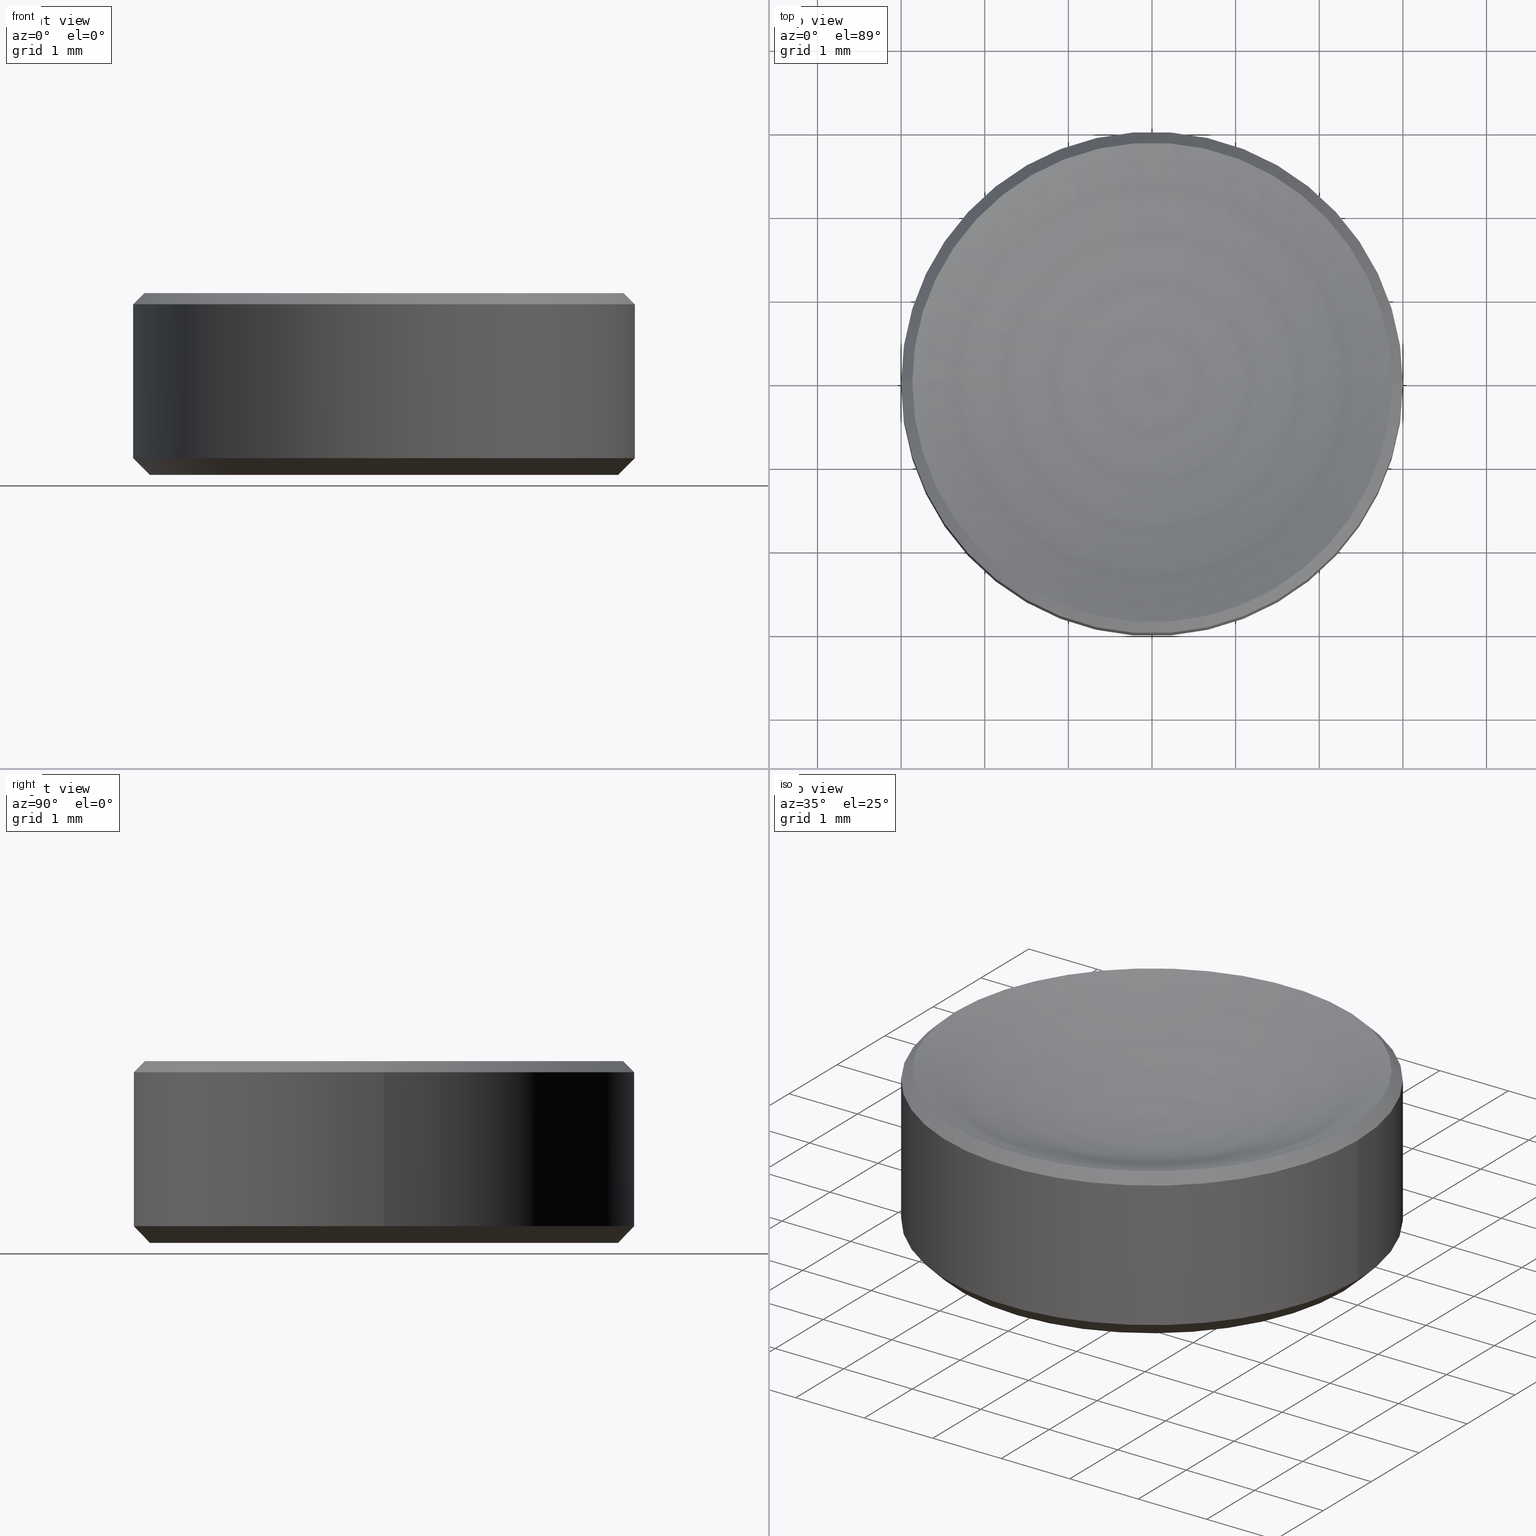
[diagram: canonical four-view strip — front | top / right | iso, engineering-drawing reading convention]
A machine part, canonical four-view strip (front | top / right | iso — engineering-drawing reading convention). The complete STEP part file that produces these views, byte-faithful:
ISO-10303-21;
HEADER;
FILE_DESCRIPTION (( 'STEP AP214' ),
    '1' );
FILE_NAME ('GL13-006A-012.STEP',
    '2022-10-25T12:37:21',
    ( '' ),
    ( '' ),
    'SwSTEP 2.0',
    'SolidWorks 2022',
    '' );
FILE_SCHEMA (( 'AUTOMOTIVE_DESIGN' ));
ENDSEC;

DATA;
#1 = COLOUR_RGB ( '',1.000000000000000000, 1.000000000000000000, 1.000000000000000000 ) ;
#2 = PRESENTATION_STYLE_ASSIGNMENT (( #146 ) ) ;
#3 = APPLICATION_PROTOCOL_DEFINITION ( 'draft international standard', 'automotive_design', 1998, #80 ) ;
#4 = ORIENTED_EDGE ( 'NONE', *, *, #187, .T. ) ;
#5 = ADVANCED_FACE ( 'NONE', ( #197 ), #238, .T. ) ;
#6 = PRODUCT_RELATED_PRODUCT_CATEGORY ( 'part', '', ( #34 ) ) ;
#7 = CONICAL_SURFACE ( 'NONE', #193, 3.000000000000000000, 0.7853981633974482790 ) ;
#8 = VECTOR ( 'NONE', #132, 1000.000000000000000 ) ;
#9 = ORIENTED_EDGE ( 'NONE', *, *, #18, .F. ) ;
#10 = CARTESIAN_POINT ( 'NONE',  ( 0.000000000000000000, 0.000000000000000000, 7.959999625418450186 ) ) ;
#11 = DIRECTION ( 'NONE',  ( -1.000000000000000000, 0.000000000000000000, 0.000000000000000000 ) ) ;
#12 = DIRECTION ( 'NONE',  ( 0.000000000000000000, 0.000000000000000000, 1.000000000000000000 ) ) ;
#13 = ORIENTED_EDGE ( 'NONE', *, *, #107, .F. ) ;
#14 = DIRECTION ( 'NONE',  ( -0.7071067811865474617, 8.659560562354932858E-17, 0.7071067811865474617 ) ) ;
#15 = ORIENTED_EDGE ( 'NONE', *, *, #122, .T. ) ;
#16 =( NAMED_UNIT ( * ) SI_UNIT ( $, .STERADIAN. ) SOLID_ANGLE_UNIT ( ) );
#17 = DIRECTION ( 'NONE',  ( -1.000000000000000000, 0.000000000000000000, 0.000000000000000000 ) ) ;
#18 = EDGE_CURVE ( 'NONE', #139, #178, #134, .T. ) ;
#19 = AXIS2_PLACEMENT_3D ( 'NONE', #217, #39, #120 ) ;
#20 = VECTOR ( 'NONE', #14, 1000.000000000000114 ) ;
#21 = AXIS2_PLACEMENT_3D ( 'NONE', #46, #164, #128 ) ;
#22 = LINE ( 'NONE', #142, #118 ) ;
#23 = ORIENTED_EDGE ( 'NONE', *, *, #148, .F. ) ;
#24 = DIRECTION ( 'NONE',  ( 1.000000000000000000, 0.000000000000000000, 0.000000000000000000 ) ) ;
#25 = CIRCLE ( 'NONE', #219, 6.459999999999999076 ) ;
#26 =( NAMED_UNIT ( * ) PLANE_ANGLE_UNIT ( ) SI_UNIT ( $, .RADIAN. ) );
#27 = ADVANCED_FACE ( 'NONE', ( #112 ), #110, .F. ) ;
#28 = FILL_AREA_STYLE_COLOUR ( '', #1 ) ;
#29 = CIRCLE ( 'NONE', #225, 2.867573379116970411 ) ;
#30 = CARTESIAN_POINT ( 'NONE',  ( 0.000000000000000000, 0.000000000000000000, 0.000000000000000000 ) ) ;
#31 = ADVANCED_BREP_SHAPE_REPRESENTATION ( 'GL13-006A-012', ( #87, #191 ), #123 ) ;
#32 = CIRCLE ( 'NONE', #21, 3.000000000000000000 ) ;
#33 = ORIENTED_EDGE ( 'NONE', *, *, #224, .T. ) ;
#34 = PRODUCT ( 'GL13-006A-012', 'GL13-006A-012', '', ( #156 ) ) ;
#35 = ORIENTED_EDGE ( 'NONE', *, *, #108, .F. ) ;
#36 = DIRECTION ( 'NONE',  ( -0.000000000000000000, -0.000000000000000000, 1.000000000000000000 ) ) ;
#37 = ORIENTED_EDGE ( 'NONE', *, *, #223, .F. ) ;
#38 = DIRECTION ( 'NONE',  ( 1.000000000000000000, 0.000000000000000000, 0.000000000000000000 ) ) ;
#39 = DIRECTION ( 'NONE',  ( -0.000000000000000000, -0.000000000000000000, 1.000000000000000000 ) ) ;
#40 = CARTESIAN_POINT ( 'NONE',  ( 0.000000000000000000, 0.000000000000000000, 1.500000000000000000 ) ) ;
#41 = CARTESIAN_POINT ( 'NONE',  ( 0.000000000000000000, 0.000000000000000000, 2.039999999999998259 ) ) ;
#42 = EDGE_LOOP ( 'NONE', ( #33, #199, #175, #189 ) ) ;
#43 = CARTESIAN_POINT ( 'NONE',  ( 3.000000000000000000, 0.000000000000000000, 0.2000000000000020373 ) ) ;
#44 = CIRCLE ( 'NONE', #177, 3.000000000000000000 ) ;
#45 = CIRCLE ( 'NONE', #161, 6.459999999999999076 ) ;
#46 = CARTESIAN_POINT ( 'NONE',  ( 0.000000000000000000, 0.000000000000000000, 0.2000000000000020373 ) ) ;
#47 = ORIENTED_EDGE ( 'NONE', *, *, #126, .F. ) ;
#48 = CARTESIAN_POINT ( 'NONE',  ( -2.799999999999998046, 3.551475717527323339E-16, 1.836970198721029934E-16 ) ) ;
#49 =( NAMED_UNIT ( * ) SI_UNIT ( $, .STERADIAN. ) SOLID_ANGLE_UNIT ( ) );
#50 = AXIS2_PLACEMENT_3D ( 'NONE', #104, #234, #213 ) ;
#51 = PLANE ( 'NONE',  #88 ) ;
#52 = UNCERTAINTY_MEASURE_WITH_UNIT (LENGTH_MEASURE( 1.000000000000000082E-05 ), #124, 'distance_accuracy_value', 'NONE');
#53 = FACE_OUTER_BOUND ( 'NONE', #109, .T. ) ;
#54 = VECTOR ( 'NONE', #116, 1000.000000000000114 ) ;
#55 = FACE_OUTER_BOUND ( 'NONE', #113, .T. ) ;
#56 = DIRECTION ( 'NONE',  ( 1.000000000000000000, 0.000000000000000000, 0.000000000000000000 ) ) ;
#57 = CARTESIAN_POINT ( 'NONE',  ( 0.000000000000000000, 0.000000000000000000, 1.836970198721029934E-16 ) ) ;
#58 = ORIENTED_EDGE ( 'NONE', *, *, #90, .F. ) ;
#59 = DIRECTION ( 'NONE',  ( -0.000000000000000000, -0.000000000000000000, 1.000000000000000000 ) ) ;
#60 = ADVANCED_FACE ( 'NONE', ( #92 ), #51, .F. ) ;
#61 = ADVANCED_FACE ( 'NONE', ( #53 ), #256, .F. ) ;
#62 = DIRECTION ( 'NONE',  ( 0.000000000000000000, 0.000000000000000000, -1.000000000000000000 ) ) ;
#63 = DIRECTION ( 'NONE',  ( -1.000000000000000000, 1.224646799147352961E-16, 0.000000000000000000 ) ) ;
#64 = CARTESIAN_POINT ( 'NONE',  ( 2.867573379116970411, 0.000000000000000000, 2.172426620883027404 ) ) ;
#65 = VERTEX_POINT ( 'NONE', #196 ) ;
#66 = DIRECTION ( 'NONE',  ( -0.000000000000000000, -0.000000000000000000, 1.000000000000000000 ) ) ;
#67 = DIRECTION ( 'NONE',  ( 0.000000000000000000, 0.000000000000000000, -1.000000000000000000 ) ) ;
#68 = ADVANCED_FACE ( 'NONE', ( #55 ), #76, .T. ) ;
#69 = DIRECTION ( 'NONE',  ( 0.000000000000000000, -1.000000000000000000, 0.000000000000000000 ) ) ;
#70 = AXIS2_PLACEMENT_3D ( 'NONE', #204, #62, #81 ) ;
#71 = PRESENTATION_LAYER_ASSIGNMENT (  '', '', ( #183 ) ) ;
#72 = UNCERTAINTY_MEASURE_WITH_UNIT (LENGTH_MEASURE( 1.000000000000000082E-05 ), #129, 'distance_accuracy_value', 'NONE');
#73 = ORIENTED_EDGE ( 'NONE', *, *, #205, .T. ) ;
#74 = DIRECTION ( 'NONE',  ( 1.000000000000000000, 0.000000000000000000, 0.000000000000000000 ) ) ;
#75 = PRODUCT_DEFINITION_FORMATION_WITH_SPECIFIED_SOURCE ( '�κ�', '', #34, .NOT_KNOWN. ) ;
#76 = CYLINDRICAL_SURFACE ( 'NONE', #117, 3.000000000000000000 ) ;
#77 = FACE_OUTER_BOUND ( 'NONE', #79, .T. ) ;
#78 = ORIENTED_EDGE ( 'NONE', *, *, #122, .F. ) ;
#79 = EDGE_LOOP ( 'NONE', ( #254, #173, #170, #236 ) ) ;
#80 = APPLICATION_CONTEXT ( 'automotive_design' ) ;
#81 = DIRECTION ( 'NONE',  ( -1.000000000000000000, 0.000000000000000000, 0.000000000000000000 ) ) ;
#82 =( NAMED_UNIT ( * ) PLANE_ANGLE_UNIT ( ) SI_UNIT ( $, .RADIAN. ) );
#83 = CARTESIAN_POINT ( 'NONE',  ( 3.000000000000000000, 0.000000000000000000, 1.500000000000000000 ) ) ;
#84 = PRODUCT_DEFINITION ( 'δ֪', '', #75, #209 ) ;
#85 = CARTESIAN_POINT ( 'NONE',  ( 0.000000000000000000, 0.000000000000000000, 2.172426620883026960 ) ) ;
#86 = CIRCLE ( 'NONE', #251, 3.000000000000000000 ) ;
#87 = MANIFOLD_SOLID_BREP ( '����2', #127 ) ;
#88 = AXIS2_PLACEMENT_3D ( 'NONE', #201, #179, #171 ) ;
#89 = EDGE_LOOP ( 'NONE', ( #78, #4, #208, #47 ) ) ;
#90 = EDGE_CURVE ( 'NONE', #258, #139, #25, .T. ) ;
#91 = CARTESIAN_POINT ( 'NONE',  ( -2.867573379116970411, 0.000000000000000000, 2.172426620883026960 ) ) ;
#92 = FACE_OUTER_BOUND ( 'NONE', #229, .T. ) ;
#93 = ORIENTED_EDGE ( 'NONE', *, *, #205, .F. ) ;
#94 = CARTESIAN_POINT ( 'NONE',  ( 0.000000000000000000, 0.000000000000000000, 2.172426620883026960 ) ) ;
#95 = CARTESIAN_POINT ( 'NONE',  ( 0.000000000000000000, 0.000000000000000000, 2.172426620883026960 ) ) ;
#96 = CARTESIAN_POINT ( 'NONE',  ( -2.867573379116970411, 3.511764560055757538E-16, 2.172426620883027404 ) ) ;
#97 = CARTESIAN_POINT ( 'NONE',  ( 3.000000000000000000, 0.000000000000000000, 0.2000000000000020373 ) ) ;
#98 = AXIS2_PLACEMENT_3D ( 'NONE', #95, #212, #11 ) ;
#99 = CIRCLE ( 'NONE', #50, 2.799999999999998046 ) ;
#100 =( GEOMETRIC_REPRESENTATION_CONTEXT ( 3 ) GLOBAL_UNCERTAINTY_ASSIGNED_CONTEXT ( ( #172 ) ) GLOBAL_UNIT_ASSIGNED_CONTEXT ( ( #167, #111, #49 ) ) REPRESENTATION_CONTEXT ( 'NONE', 'WORKASPACE' ) );
#101 = DIRECTION ( 'NONE',  ( 1.224646799147353207E-16, 1.000000000000000000, 0.000000000000000000 ) ) ;
#102 = SURFACE_STYLE_FILL_AREA ( #144 ) ;
#103 = ORIENTED_EDGE ( 'NONE', *, *, #180, .T. ) ;
#104 = CARTESIAN_POINT ( 'NONE',  ( 0.000000000000000000, 0.000000000000000000, 1.836970198721029934E-16 ) ) ;
#105 = AXIS2_PLACEMENT_3D ( 'NONE', #41, #181, #17 ) ;
#106 = FILL_AREA_STYLE_COLOUR ( '', #244 ) ;
#107 = EDGE_CURVE ( 'NONE', #130, #178, #22, .T. ) ;
#108 = EDGE_CURVE ( 'NONE', #65, #178, #182, .T. ) ;
#109 = EDGE_LOOP ( 'NONE', ( #37, #153, #73 ) ) ;
#110 = TOROIDAL_SURFACE ( 'NONE', #19, -0.002199907603219397254, 6.459999999999999076 ) ;
#111 =( NAMED_UNIT ( * ) PLANE_ANGLE_UNIT ( ) SI_UNIT ( $, .RADIAN. ) );
#112 = FACE_OUTER_BOUND ( 'NONE', #259, .T. ) ;
#113 = EDGE_LOOP ( 'NONE', ( #13, #103, #214, #147 ) ) ;
#114 = DIRECTION ( 'NONE',  ( 1.000000000000000000, 0.000000000000000000, 0.000000000000000000 ) ) ;
#115 = EDGE_LOOP ( 'NONE', ( #152, #195, #247, #9 ) ) ;
#116 = DIRECTION ( 'NONE',  ( 0.7071067811865499042, 8.659560562354962440E-17, -0.7071067811865452413 ) ) ;
#117 = AXIS2_PLACEMENT_3D ( 'NONE', #154, #233, #56 ) ;
#118 = VECTOR ( 'NONE', #218, 1000.000000000000000 ) ;
#119 = CONICAL_SURFACE ( 'NONE', #194, 3.000000000000000000, 0.7853981633974482790 ) ;
#120 = DIRECTION ( 'NONE',  ( 1.000000000000000000, 0.000000000000000000, 0.000000000000000000 ) ) ;
#121 = DIRECTION ( 'NONE',  ( 1.000000000000000000, 0.000000000000000000, 0.000000000000000000 ) ) ;
#122 = EDGE_CURVE ( 'NONE', #255, #226, #239, .T. ) ;
#123 =( GEOMETRIC_REPRESENTATION_CONTEXT ( 3 ) GLOBAL_UNCERTAINTY_ASSIGNED_CONTEXT ( ( #72 ) ) GLOBAL_UNIT_ASSIGNED_CONTEXT ( ( #129, #26, #227 ) ) REPRESENTATION_CONTEXT ( 'NONE', 'WORKASPACE' ) );
#124 =( LENGTH_UNIT ( ) NAMED_UNIT ( * ) SI_UNIT ( .MILLI., .METRE. ) );
#125 = FACE_OUTER_BOUND ( 'NONE', #42, .T. ) ;
#126 = EDGE_CURVE ( 'NONE', #226, #158, #264, .T. ) ;
#127 = CLOSED_SHELL ( 'NONE', ( #5, #248, #160, #61, #27, #68, #60, #143, #135 ) ) ;
#128 = DIRECTION ( 'NONE',  ( 1.000000000000000000, 0.000000000000000000, 0.000000000000000000 ) ) ;
#129 =( LENGTH_UNIT ( ) NAMED_UNIT ( * ) SI_UNIT ( .MILLI., .METRE. ) );
#130 = VERTEX_POINT ( 'NONE', #138 ) ;
#131 = DIRECTION ( 'NONE',  ( 1.000000000000000000, 0.000000000000000000, 0.000000000000000000 ) ) ;
#132 = DIRECTION ( 'NONE',  ( -0.000000000000000000, -0.000000000000000000, 1.000000000000000000 ) ) ;
#133 = FILL_AREA_STYLE ('',( #28 ) ) ;
#134 = LINE ( 'NONE', #91, #250 ) ;
#135 = ADVANCED_FACE ( 'NONE', ( #246 ), #262, .T. ) ;
#136 = VERTEX_POINT ( 'NONE', #64 ) ;
#137 = ORIENTED_EDGE ( 'NONE', *, *, #215, .T. ) ;
#138 = CARTESIAN_POINT ( 'NONE',  ( -3.000000000000000000, 3.673940397442059868E-16, 0.2000000000000020373 ) ) ;
#139 = VERTEX_POINT ( 'NONE', #96 ) ;
#140 = SHAPE_DEFINITION_REPRESENTATION ( #260, #31 ) ;
#141 =( GEOMETRIC_REPRESENTATION_CONTEXT ( 3 ) GLOBAL_UNCERTAINTY_ASSIGNED_CONTEXT ( ( #52 ) ) GLOBAL_UNIT_ASSIGNED_CONTEXT ( ( #124, #82, #16 ) ) REPRESENTATION_CONTEXT ( 'NONE', 'WORKASPACE' ) );
#142 = CARTESIAN_POINT ( 'NONE',  ( -3.000000000000000000, 3.673940397442059868E-16, 1.500000000000000000 ) ) ;
#143 = ADVANCED_FACE ( 'NONE', ( #77 ), #7, .T. ) ;
#144 = FILL_AREA_STYLE ('',( #106 ) ) ;
#145 = DIRECTION ( 'NONE',  ( -0.000000000000000000, -0.000000000000000000, 1.000000000000000000 ) ) ;
#146 = SURFACE_STYLE_USAGE ( .BOTH. , #168 ) ;
#147 = ORIENTED_EDGE ( 'NONE', *, *, #108, .T. ) ;
#148 = EDGE_CURVE ( 'NONE', #136, #65, #155, .T. ) ;
#149 = DIRECTION ( 'NONE',  ( 0.000000000000000000, 0.000000000000000000, -1.000000000000000000 ) ) ;
#150 = FACE_OUTER_BOUND ( 'NONE', #89, .T. ) ;
#151 = PRESENTATION_LAYER_ASSIGNMENT (  '', '', ( #261 ) ) ;
#152 = ORIENTED_EDGE ( 'NONE', *, *, #215, .F. ) ;
#153 = ORIENTED_EDGE ( 'NONE', *, *, #90, .T. ) ;
#154 = CARTESIAN_POINT ( 'NONE',  ( 0.000000000000000000, 0.000000000000000000, 1.500000000000000000 ) ) ;
#155 = LINE ( 'NONE', #221, #54 ) ;
#156 = PRODUCT_CONTEXT ( 'NONE', #80, 'mechanical' ) ;
#157 = DIRECTION ( 'NONE',  ( -0.7071067811865499042, 0.000000000000000000, -0.7071067811865452413 ) ) ;
#158 = VERTEX_POINT ( 'NONE', #43 ) ;
#159 = DIRECTION ( 'NONE',  ( 0.000000000000000000, 0.000000000000000000, -1.000000000000000000 ) ) ;
#160 = ADVANCED_FACE ( 'NONE', ( #125 ), #237, .T. ) ;
#161 = AXIS2_PLACEMENT_3D ( 'NONE', #228, #69, #149 ) ;
#162 = DIRECTION ( 'NONE',  ( 0.7071067811865474617, 0.000000000000000000, 0.7071067811865474617 ) ) ;
#163 = CARTESIAN_POINT ( 'NONE',  ( 0.000000000000000000, 0.000000000000000000, 0.2000000000000020373 ) ) ;
#164 = DIRECTION ( 'NONE',  ( -0.000000000000000000, -0.000000000000000000, 1.000000000000000000 ) ) ;
#165 = CIRCLE ( 'NONE', #176, 2.867573379116970411 ) ;
#166 = LINE ( 'NONE', #83, #8 ) ;
#167 =( LENGTH_UNIT ( ) NAMED_UNIT ( * ) SI_UNIT ( .MILLI., .METRE. ) );
#168 = SURFACE_SIDE_STYLE ('',( #190 ) ) ;
#169 = EDGE_CURVE ( 'NONE', #226, #255, #99, .T. ) ;
#170 = ORIENTED_EDGE ( 'NONE', *, *, #126, .T. ) ;
#171 = DIRECTION ( 'NONE',  ( 1.000000000000000000, 0.000000000000000000, 0.000000000000000000 ) ) ;
#172 = UNCERTAINTY_MEASURE_WITH_UNIT (LENGTH_MEASURE( 1.000000000000000082E-05 ), #167, 'distance_accuracy_value', 'NONE');
#173 = ORIENTED_EDGE ( 'NONE', *, *, #169, .F. ) ;
#174 = AXIS2_PLACEMENT_3D ( 'NONE', #10, #257, #74 ) ;
#175 = ORIENTED_EDGE ( 'NONE', *, *, #263, .T. ) ;
#176 = AXIS2_PLACEMENT_3D ( 'NONE', #94, #186, #188 ) ;
#177 = AXIS2_PLACEMENT_3D ( 'NONE', #249, #67, #252 ) ;
#178 = VERTEX_POINT ( 'NONE', #185 ) ;
#179 = DIRECTION ( 'NONE',  ( 0.000000000000000000, -0.000000000000000000, 1.000000000000000000 ) ) ;
#180 = EDGE_CURVE ( 'NONE', #130, #158, #86, .T. ) ;
#181 = DIRECTION ( 'NONE',  ( 0.000000000000000000, 0.000000000000000000, -1.000000000000000000 ) ) ;
#182 = CIRCLE ( 'NONE', #105, 3.000000000000000000 ) ;
#183 = STYLED_ITEM ( 'NONE', ( #2 ), #31 ) ;
#184 = VECTOR ( 'NONE', #162, 1000.000000000000114 ) ;
#185 = CARTESIAN_POINT ( 'NONE',  ( -3.000000000000000000, 3.673940397442059868E-16, 2.039999999999998259 ) ) ;
#186 = DIRECTION ( 'NONE',  ( -0.000000000000000000, -0.000000000000000000, 1.000000000000000000 ) ) ;
#187 = EDGE_CURVE ( 'NONE', #255, #130, #200, .T. ) ;
#188 = DIRECTION ( 'NONE',  ( 1.000000000000000000, 0.000000000000000000, 0.000000000000000000 ) ) ;
#189 = ORIENTED_EDGE ( 'NONE', *, *, #230, .F. ) ;
#190 = SURFACE_STYLE_FILL_AREA ( #133 ) ;
#191 = AXIS2_PLACEMENT_3D ( 'NONE', #30, #12, #253 ) ;
#192 = APPLICATION_CONTEXT ( 'automotive_design' ) ;
#193 = AXIS2_PLACEMENT_3D ( 'NONE', #240, #145, #121 ) ;
#194 = AXIS2_PLACEMENT_3D ( 'NONE', #222, #207, #265 ) ;
#195 = ORIENTED_EDGE ( 'NONE', *, *, #148, .T. ) ;
#196 = CARTESIAN_POINT ( 'NONE',  ( 3.000000000000000000, 0.000000000000000000, 2.039999999999998259 ) ) ;
#197 = FACE_OUTER_BOUND ( 'NONE', #115, .T. ) ;
#198 = CARTESIAN_POINT ( 'NONE',  ( -3.000000000000000000, 3.673940397442059868E-16, 0.2000000000000020373 ) ) ;
#199 = ORIENTED_EDGE ( 'NONE', *, *, #107, .T. ) ;
#200 = LINE ( 'NONE', #198, #20 ) ;
#201 = CARTESIAN_POINT ( 'NONE',  ( 0.000000000000000000, 0.000000000000000000, 1.836970198721029934E-16 ) ) ;
#202 = AXIS2_PLACEMENT_3D ( 'NONE', #57, #159, #38 ) ;
#203 = SURFACE_STYLE_USAGE ( .BOTH. , #242 ) ;
#204 = CARTESIAN_POINT ( 'NONE',  ( 0.000000000000000000, 0.000000000000000000, 2.172426620883026960 ) ) ;
#205 = EDGE_CURVE ( 'NONE', #139, #136, #165, .T. ) ;
#206 = CARTESIAN_POINT ( 'NONE',  ( 0.000000000000000000, 0.000000000000000000, 1.500000000000000000 ) ) ;
#207 = DIRECTION ( 'NONE',  ( -0.000000000000000000, -0.000000000000000000, 1.000000000000000000 ) ) ;
#208 = ORIENTED_EDGE ( 'NONE', *, *, #224, .F. ) ;
#209 = PRODUCT_DEFINITION_CONTEXT ( 'detailed design', #192, 'design' ) ;
#210 = AXIS2_PLACEMENT_3D ( 'NONE', #40, #59, #24 ) ;
#211 = ORIENTED_EDGE ( 'NONE', *, *, #169, .T. ) ;
#212 = DIRECTION ( 'NONE',  ( 0.000000000000000000, 0.000000000000000000, -1.000000000000000000 ) ) ;
#213 = DIRECTION ( 'NONE',  ( 1.000000000000000000, 0.000000000000000000, 0.000000000000000000 ) ) ;
#214 = ORIENTED_EDGE ( 'NONE', *, *, #230, .T. ) ;
#215 = EDGE_CURVE ( 'NONE', #136, #139, #29, .T. ) ;
#216 = MECHANICAL_DESIGN_GEOMETRIC_PRESENTATION_REPRESENTATION (  '', ( #261 ), #141 ) ;
#217 = CARTESIAN_POINT ( 'NONE',  ( 0.000000000000000000, 0.000000000000000000, 7.959999625418450186 ) ) ;
#218 = DIRECTION ( 'NONE',  ( -0.000000000000000000, -0.000000000000000000, 1.000000000000000000 ) ) ;
#219 = AXIS2_PLACEMENT_3D ( 'NONE', #241, #101, #63 ) ;
#220 = ORIENTED_EDGE ( 'NONE', *, *, #18, .T. ) ;
#221 = CARTESIAN_POINT ( 'NONE',  ( 2.867573379116970411, 3.511764560055757538E-16, 2.172426620883026960 ) ) ;
#222 = CARTESIAN_POINT ( 'NONE',  ( 0.000000000000000000, 0.000000000000000000, 0.2000000000000020373 ) ) ;
#223 = EDGE_CURVE ( 'NONE', #258, #136, #45, .T. ) ;
#224 = EDGE_CURVE ( 'NONE', #158, #130, #32, .T. ) ;
#225 = AXIS2_PLACEMENT_3D ( 'NONE', #85, #66, #131 ) ;
#226 = VERTEX_POINT ( 'NONE', #266 ) ;
#227 =( NAMED_UNIT ( * ) SI_UNIT ( $, .STERADIAN. ) SOLID_ANGLE_UNIT ( ) );
#228 = CARTESIAN_POINT ( 'NONE',  ( -0.002199907603219397254, 0.000000000000000000, 7.959999625418450186 ) ) ;
#229 = EDGE_LOOP ( 'NONE', ( #211, #15 ) ) ;
#230 = EDGE_CURVE ( 'NONE', #158, #65, #166, .T. ) ;
#231 = MECHANICAL_DESIGN_GEOMETRIC_PRESENTATION_REPRESENTATION (  '', ( #183 ), #100 ) ;
#232 = ORIENTED_EDGE ( 'NONE', *, *, #223, .T. ) ;
#233 = DIRECTION ( 'NONE',  ( -0.000000000000000000, -0.000000000000000000, 1.000000000000000000 ) ) ;
#234 = DIRECTION ( 'NONE',  ( 0.000000000000000000, 0.000000000000000000, -1.000000000000000000 ) ) ;
#235 = APPLICATION_PROTOCOL_DEFINITION ( 'draft international standard', 'automotive_design', 1998, #192 ) ;
#236 = ORIENTED_EDGE ( 'NONE', *, *, #180, .F. ) ;
#237 = CYLINDRICAL_SURFACE ( 'NONE', #210, 3.000000000000000000 ) ;
#238 = CONICAL_SURFACE ( 'NONE', #98, 2.867573379116970411, 0.7853981633974516097 ) ;
#239 = CIRCLE ( 'NONE', #202, 2.799999999999998046 ) ;
#240 = CARTESIAN_POINT ( 'NONE',  ( 0.000000000000000000, 0.000000000000000000, 0.2000000000000020373 ) ) ;
#241 = CARTESIAN_POINT ( 'NONE',  ( 0.002199907603219397254, -2.694109804702560429E-19, 7.959999625418450186 ) ) ;
#242 = SURFACE_SIDE_STYLE ('',( #102 ) ) ;
#243 = PRESENTATION_STYLE_ASSIGNMENT (( #203 ) ) ;
#244 = COLOUR_RGB ( '',1.000000000000000000, 1.000000000000000000, 1.000000000000000000 ) ;
#245 = EDGE_LOOP ( 'NONE', ( #23, #93, #220, #35 ) ) ;
#246 = FACE_OUTER_BOUND ( 'NONE', #245, .T. ) ;
#247 = ORIENTED_EDGE ( 'NONE', *, *, #263, .F. ) ;
#248 = ADVANCED_FACE ( 'NONE', ( #150 ), #119, .T. ) ;
#249 = CARTESIAN_POINT ( 'NONE',  ( 0.000000000000000000, 0.000000000000000000, 2.039999999999998259 ) ) ;
#250 = VECTOR ( 'NONE', #157, 1000.000000000000114 ) ;
#251 = AXIS2_PLACEMENT_3D ( 'NONE', #163, #36, #114 ) ;
#252 = DIRECTION ( 'NONE',  ( -1.000000000000000000, 0.000000000000000000, 0.000000000000000000 ) ) ;
#253 = DIRECTION ( 'NONE',  ( 1.000000000000000000, 0.000000000000000000, 0.000000000000000000 ) ) ;
#254 = ORIENTED_EDGE ( 'NONE', *, *, #187, .F. ) ;
#255 = VERTEX_POINT ( 'NONE', #48 ) ;
#256 = TOROIDAL_SURFACE ( 'NONE', #174, -0.002199907603219397254, 6.459999999999999076 ) ;
#257 = DIRECTION ( 'NONE',  ( -0.000000000000000000, -0.000000000000000000, 1.000000000000000000 ) ) ;
#258 = VERTEX_POINT ( 'NONE', #206 ) ;
#259 = EDGE_LOOP ( 'NONE', ( #58, #232, #137 ) ) ;
#260 = PRODUCT_DEFINITION_SHAPE ( 'NONE', 'NONE',  #84 ) ;
#261 = STYLED_ITEM ( 'NONE', ( #243 ), #87 ) ;
#262 = CONICAL_SURFACE ( 'NONE', #70, 2.867573379116970411, 0.7853981633974516097 ) ;
#263 = EDGE_CURVE ( 'NONE', #178, #65, #44, .T. ) ;
#264 = LINE ( 'NONE', #97, #184 ) ;
#265 = DIRECTION ( 'NONE',  ( 1.000000000000000000, 0.000000000000000000, 0.000000000000000000 ) ) ;
#266 = CARTESIAN_POINT ( 'NONE',  ( 2.799999999999998046, 0.000000000000000000, 1.836970198721029934E-16 ) ) ;
ENDSEC;
END-ISO-10303-21;
